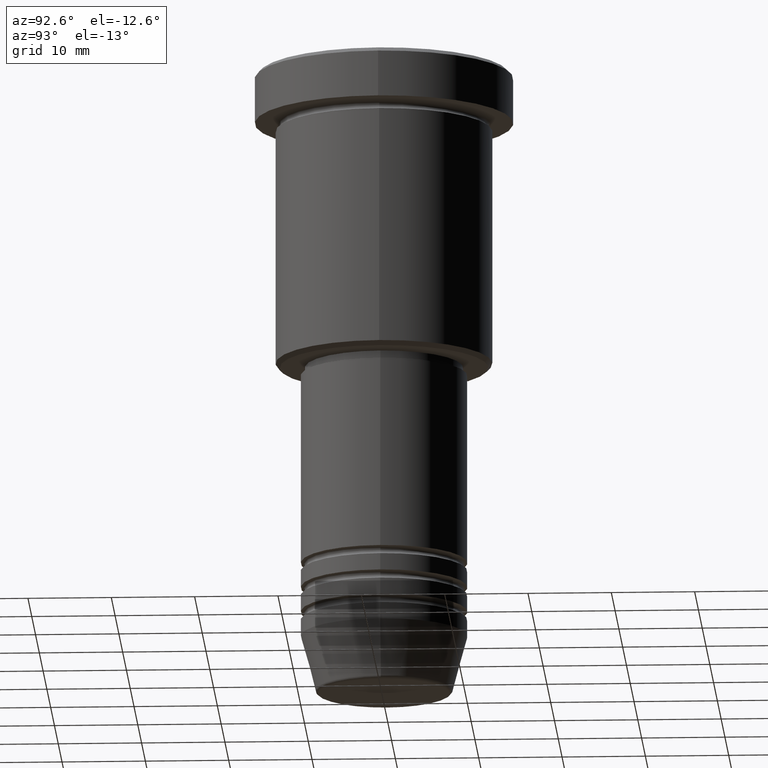
[diagram: clean part render]
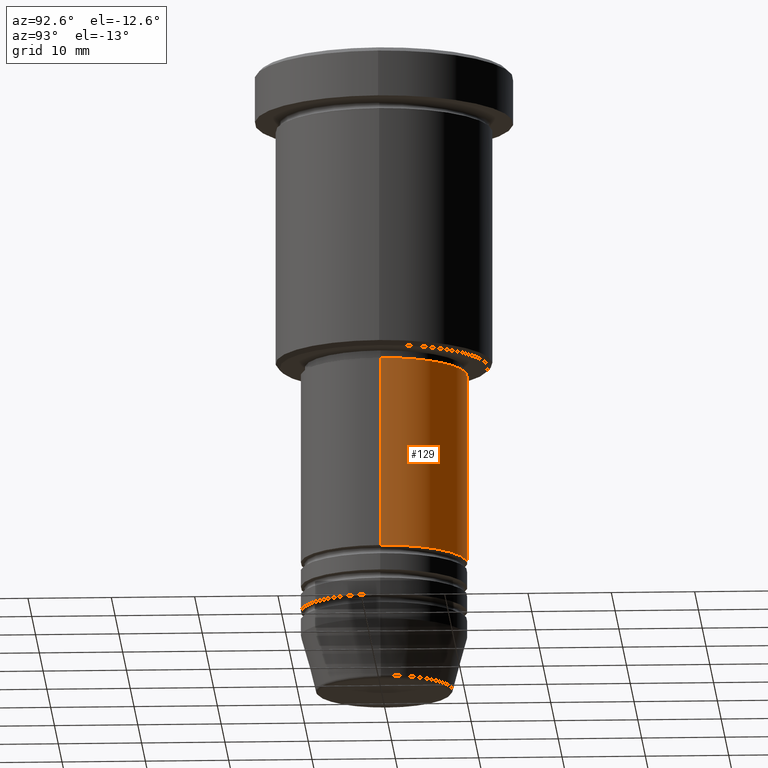
[diagram: same view with one face highlighted and labeled with its STEP entity id]
A machine part, auxiliary view. The second image highlights one B-rep face of the part: STEP entity #129.
In plain terms, the highlighted cylindrical surface (partial cylindrical patch) has radius 10 mm, axis along (-0, -0, 1).
Its self-contained STEP definition (entity closure, byte-faithful):
#49 = VERTEX_POINT ( 'NONE', #424 ) ;
#63 = CIRCLE ( 'NONE', #1127, 10.00000000000000000 ) ;
#129 = ADVANCED_FACE ( 'NONE', ( #787 ), #960, .T. ) ;
#149 = EDGE_CURVE ( 'NONE', #1061, #909, #527, .T. ) ;
#153 = EDGE_LOOP ( 'NONE', ( #172, #1114, #693, #342 ) ) ;
#172 = ORIENTED_EDGE ( 'NONE', *, *, #848, .T. ) ;
#253 = CARTESIAN_POINT ( 'NONE',  ( -10.00000000000000000, 1.224646799147353256E-15, -59.99999999999998579 ) ) ;
#299 = DIRECTION ( 'NONE',  ( 1.000000000000000000, 0.000000000000000000, 0.000000000000000000 ) ) ;
#342 = ORIENTED_EDGE ( 'NONE', *, *, #1064, .F. ) ;
#396 = CARTESIAN_POINT ( 'NONE',  ( -10.00000000000000000, 1.224646799147353256E-15, -37.00000000000000711 ) ) ;
#408 = VECTOR ( 'NONE', #766, 1000.000000000000000 ) ;
#424 = CARTESIAN_POINT ( 'NONE',  ( 10.00000000000000000, 0.000000000000000000, -59.99999999999998579 ) ) ;
#463 = DIRECTION ( 'NONE',  ( -0.000000000000000000, -0.000000000000000000, 1.000000000000000000 ) ) ;
#471 = CARTESIAN_POINT ( 'NONE',  ( 0.000000000000000000, 0.000000000000000000, -37.00000000000000711 ) ) ;
#527 = LINE ( 'NONE', #891, #408 ) ;
#592 = AXIS2_PLACEMENT_3D ( 'NONE', #759, #942, #299 ) ;
#609 = VERTEX_POINT ( 'NONE', #683 ) ;
#617 = DIRECTION ( 'NONE',  ( 1.000000000000000000, 0.000000000000000000, 0.000000000000000000 ) ) ;
#619 = CARTESIAN_POINT ( 'NONE',  ( 10.00000000000000000, 0.000000000000000000, 0.000000000000000000 ) ) ;
#661 = DIRECTION ( 'NONE',  ( 1.000000000000000000, 0.000000000000000000, 0.000000000000000000 ) ) ;
#683 = CARTESIAN_POINT ( 'NONE',  ( 10.00000000000000000, 0.000000000000000000, -37.00000000000000711 ) ) ;
#693 = ORIENTED_EDGE ( 'NONE', *, *, #723, .F. ) ;
#699 = CARTESIAN_POINT ( 'NONE',  ( 0.000000000000000000, 0.000000000000000000, 0.000000000000000000 ) ) ;
#723 = EDGE_CURVE ( 'NONE', #609, #909, #63, .T. ) ;
#759 = CARTESIAN_POINT ( 'NONE',  ( 0.000000000000000000, 0.000000000000000000, -59.99999999999998579 ) ) ;
#766 = DIRECTION ( 'NONE',  ( -0.000000000000000000, -0.000000000000000000, 1.000000000000000000 ) ) ;
#774 = DIRECTION ( 'NONE',  ( -0.000000000000000000, -0.000000000000000000, 1.000000000000000000 ) ) ;
#787 = FACE_OUTER_BOUND ( 'NONE', #153, .T. ) ;
#800 = VECTOR ( 'NONE', #1131, 1000.000000000000000 ) ;
#848 = EDGE_CURVE ( 'NONE', #49, #1061, #1165, .T. ) ;
#875 = LINE ( 'NONE', #619, #800 ) ;
#891 = CARTESIAN_POINT ( 'NONE',  ( -10.00000000000000000, 1.224646799147353256E-15, 0.000000000000000000 ) ) ;
#909 = VERTEX_POINT ( 'NONE', #396 ) ;
#942 = DIRECTION ( 'NONE',  ( -0.000000000000000000, -0.000000000000000000, 1.000000000000000000 ) ) ;
#960 = CYLINDRICAL_SURFACE ( 'NONE', #1091, 10.00000000000000000 ) ;
#1061 = VERTEX_POINT ( 'NONE', #253 ) ;
#1064 = EDGE_CURVE ( 'NONE', #49, #609, #875, .T. ) ;
#1091 = AXIS2_PLACEMENT_3D ( 'NONE', #699, #774, #617 ) ;
#1114 = ORIENTED_EDGE ( 'NONE', *, *, #149, .T. ) ;
#1127 = AXIS2_PLACEMENT_3D ( 'NONE', #471, #463, #661 ) ;
#1131 = DIRECTION ( 'NONE',  ( -0.000000000000000000, -0.000000000000000000, 1.000000000000000000 ) ) ;
#1165 = CIRCLE ( 'NONE', #592, 10.00000000000000000 ) ;